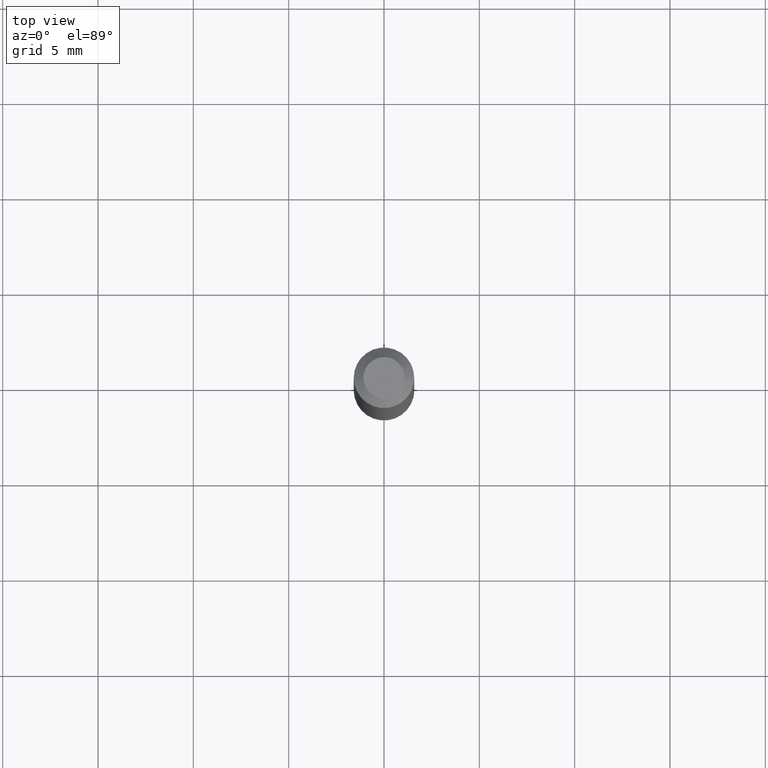
[diagram: clean part render]
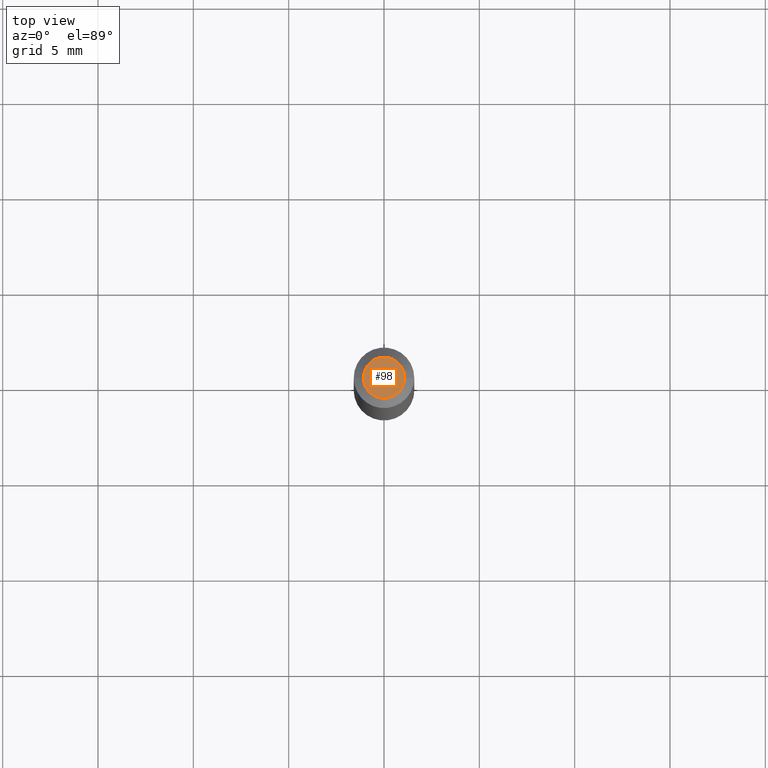
[diagram: same view with one face highlighted and labeled with its STEP entity id]
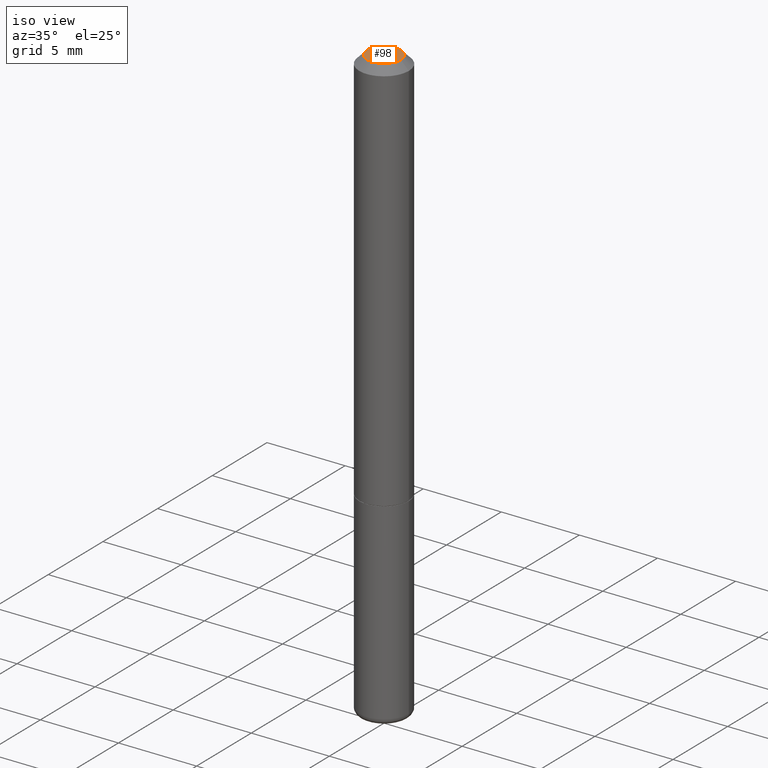
[diagram: same view with one face highlighted and labeled with its STEP entity id]
A machine part, top view. The second image highlights one B-rep face of the part: STEP entity #98.
A second angle (iso view) of the same face is appended — the face is thin or edge-on in the first view.
In plain terms, the highlighted planar face has unit normal (0, -0, -1).
Its self-contained STEP definition (entity closure, byte-faithful):
#15 = CIRCLE ( 'NONE', #272, 0.04249999999999995448 ) ;
#23 = ORIENTED_EDGE ( 'NONE', *, *, #60, .T. ) ;
#43 = VERTEX_POINT ( 'NONE', #202 ) ;
#55 = VERTEX_POINT ( 'NONE', #240 ) ;
#58 = ORIENTED_EDGE ( 'NONE', *, *, #434, .T. ) ;
#60 = EDGE_CURVE ( 'NONE', #43, #55, #15, .T. ) ;
#98 = ADVANCED_FACE ( 'NONE', ( #291 ), #144, .F. ) ;
#109 = DIRECTION ( 'NONE',  ( 2.438088387897960049E-29, -3.491481338843145188E-15, -1.000000000000000000 ) ) ;
#116 = CARTESIAN_POINT ( 'NONE',  ( 1.357006838635785746E-45, -1.937446121494581442E-31, -5.549066237130534971E-17 ) ) ;
#144 = PLANE ( 'NONE',  #238 ) ;
#152 = EDGE_LOOP ( 'NONE', ( #58, #23 ) ) ;
#173 = CARTESIAN_POINT ( 'NONE',  ( 1.357006838635785746E-45, -1.937446121494581442E-31, -5.549066237130534971E-17 ) ) ;
#183 = CIRCLE ( 'NONE', #377, 0.04249999999999995448 ) ;
#202 = CARTESIAN_POINT ( 'NONE',  ( 0.04249999999999995448, -3.950909582714361036E-16, -5.549066237130292766E-17 ) ) ;
#238 = AXIS2_PLACEMENT_3D ( 'NONE', #418, #109, #251 ) ;
#240 = CARTESIAN_POINT ( 'NONE',  ( -0.04249999999999995448, 3.316907271900966728E-16, -5.549066237130754373E-17 ) ) ;
#251 = DIRECTION ( 'NONE',  ( -1.000000000000000000, 6.982962677686265922E-15, -4.876176775795935793E-29 ) ) ;
#258 = DIRECTION ( 'NONE',  ( -2.445468806185136597E-29, 3.491481338843145583E-15, 1.000000000000000000 ) ) ;
#272 = AXIS2_PLACEMENT_3D ( 'NONE', #173, #332, #373 ) ;
#291 = FACE_OUTER_BOUND ( 'NONE', #152, .T. ) ;
#332 = DIRECTION ( 'NONE',  ( -2.445468806185136597E-29, 3.491481338843145583E-15, 1.000000000000000000 ) ) ;
#373 = DIRECTION ( 'NONE',  ( 1.000000000000000000, -6.982962677686267499E-15, 4.870577812114089772E-29 ) ) ;
#377 = AXIS2_PLACEMENT_3D ( 'NONE', #116, #258, #422 ) ;
#418 = CARTESIAN_POINT ( 'NONE',  ( 2.967759138016660098E-16, 0.04249999999999995448, -1.761332880864862221E-16 ) ) ;
#422 = DIRECTION ( 'NONE',  ( 1.000000000000000000, -6.982962677686267499E-15, 4.870577812114089772E-29 ) ) ;
#434 = EDGE_CURVE ( 'NONE', #55, #43, #183, .T. ) ;